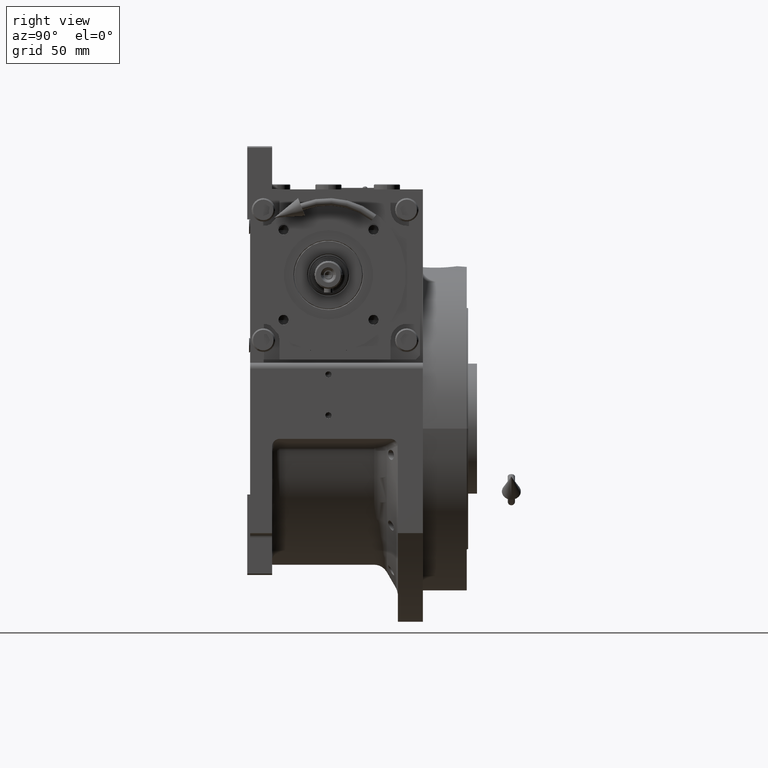
[diagram: clean part render]
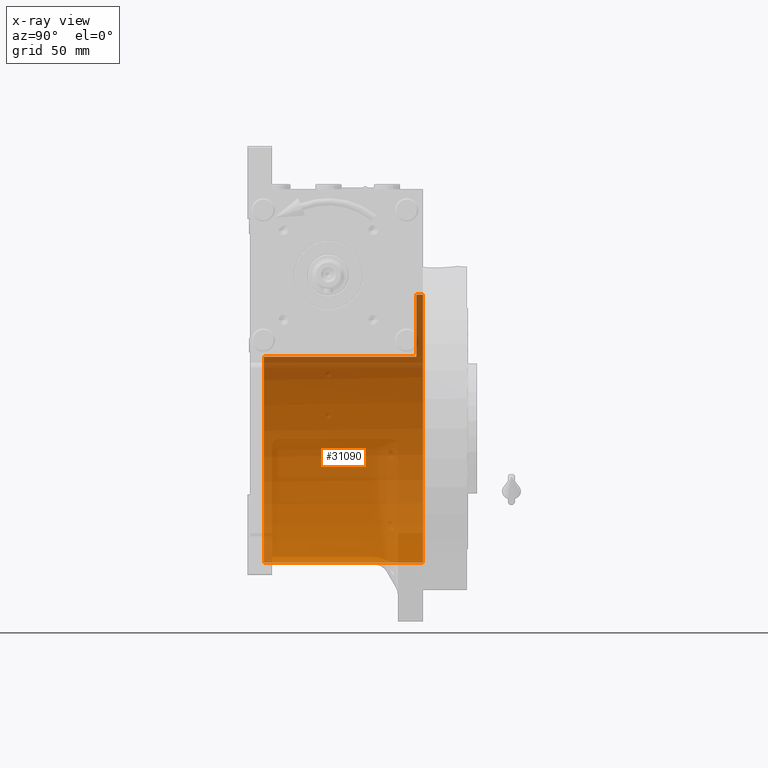
[diagram: x-ray — body ghosted, one internal face saturated and labeled with its STEP entity id]
A machine part, right view, then the same camera in x-ray: the body is ghosted and one INTERNAL B-rep face — a face not visible from any outside direction — is saturated and labeled: STEP entity #31090.
In plain terms, the highlighted cylindrical surface (partial cylindrical patch) has radius 91.5 mm, axis along (0, -1, 0).
Its self-contained STEP definition (entity closure, byte-faithful):
#1455 = DIRECTION ( 'NONE',  ( 0.000000000000000000, -1.000000000000000000, 0.000000000000000000 ) ) ;
#2625 = CIRCLE ( 'NONE', #34037, 91.50000000000000000 ) ;
#2694 = VECTOR ( 'NONE', #7690, 1000.000000000000000 ) ;
#4248 = CARTESIAN_POINT ( 'NONE',  ( 0.000000000000000000, -44.00000000000000000, 0.000000000000000000 ) ) ;
#4761 = ORIENTED_EDGE ( 'NONE', *, *, #48164, .F. ) ;
#6672 = LINE ( 'NONE', #49555, #58993 ) ;
#7690 = DIRECTION ( 'NONE',  ( -0.000000000000000000, 1.000000000000000000, -0.000000000000000000 ) ) ;
#9637 = DIRECTION ( 'NONE',  ( 0.000000000000000000, -1.000000000000000000, 0.000000000000000000 ) ) ;
#10783 = VERTEX_POINT ( 'NONE', #46263 ) ;
#11871 = VERTEX_POINT ( 'NONE', #40043 ) ;
#13109 = EDGE_CURVE ( 'NONE', #10783, #31284, #14566, .T. ) ;
#14145 = AXIS2_PLACEMENT_3D ( 'NONE', #4248, #59082, #53792 ) ;
#14566 = LINE ( 'NONE', #62741, #61930 ) ;
#14881 = DIRECTION ( 'NONE',  ( -0.000000000000000000, -1.000000000000000000, -0.000000000000000000 ) ) ;
#16648 = EDGE_CURVE ( 'NONE', #47183, #65299, #6672, .T. ) ;
#19133 = EDGE_CURVE ( 'NONE', #10783, #47183, #57244, .T. ) ;
#22296 = CARTESIAN_POINT ( 'NONE',  ( 0.000000000000000000, -44.00000000000000000, -91.50000000000000000 ) ) ;
#22478 = DIRECTION ( 'NONE',  ( 0.000000000000000000, -1.000000000000000000, 0.000000000000000000 ) ) ;
#23303 = ORIENTED_EDGE ( 'NONE', *, *, #61287, .F. ) ;
#28158 = FACE_OUTER_BOUND ( 'NONE', #44848, .T. ) ;
#28687 = CARTESIAN_POINT ( 'NONE',  ( 0.000000000000000000, 64.50000000000000000, -91.50000000000000000 ) ) ;
#30563 = CARTESIAN_POINT ( 'NONE',  ( 1.120551821219827868E-14, 60.00000000000000000, 91.50000000000000000 ) ) ;
#31090 = ADVANCED_FACE ( 'NONE', ( #28158 ), #48893, .F. ) ;
#31284 = VERTEX_POINT ( 'NONE', #30563 ) ;
#31555 = ORIENTED_EDGE ( 'NONE', *, *, #50344, .F. ) ;
#31752 = ORIENTED_EDGE ( 'NONE', *, *, #13109, .T. ) ;
#34037 = AXIS2_PLACEMENT_3D ( 'NONE', #35862, #52362, #51303 ) ;
#34401 = LINE ( 'NONE', #55855, #2694 ) ;
#35862 = CARTESIAN_POINT ( 'NONE',  ( 0.000000000000000000, 60.00000000000000000, 0.000000000000000000 ) ) ;
#36347 = DIRECTION ( 'NONE',  ( 0.000000000000000000, 0.000000000000000000, 1.000000000000000000 ) ) ;
#39268 = AXIS2_PLACEMENT_3D ( 'NONE', #60492, #1455, #44331 ) ;
#40043 = CARTESIAN_POINT ( 'NONE',  ( -77.27386362800814368, -44.00000000000000000, 49.00000000000000000 ) ) ;
#41131 = CIRCLE ( 'NONE', #14145, 91.50000000000000000 ) ;
#44331 = DIRECTION ( 'NONE',  ( 0.000000000000000000, 0.000000000000000000, -1.000000000000000000 ) ) ;
#44848 = EDGE_LOOP ( 'NONE', ( #63069, #31752, #23303, #4761, #31555, #59738 ) ) ;
#46263 = CARTESIAN_POINT ( 'NONE',  ( 1.120551821219827868E-14, 64.50000000000000000, 91.50000000000000000 ) ) ;
#47183 = VERTEX_POINT ( 'NONE', #28687 ) ;
#48164 = EDGE_CURVE ( 'NONE', #11871, #65623, #34401, .T. ) ;
#48893 = CYLINDRICAL_SURFACE ( 'NONE', #39268, 91.50000000000000000 ) ;
#49555 = CARTESIAN_POINT ( 'NONE',  ( 0.000000000000000000, 69.00000000000004263, -91.50000000000000000 ) ) ;
#50344 = EDGE_CURVE ( 'NONE', #65299, #11871, #41131, .T. ) ;
#51303 = DIRECTION ( 'NONE',  ( 1.776356839400250465E-15, 0.000000000000000000, -1.000000000000000000 ) ) ;
#51604 = AXIS2_PLACEMENT_3D ( 'NONE', #52855, #14881, #36347 ) ;
#52362 = DIRECTION ( 'NONE',  ( 0.000000000000000000, 1.000000000000000000, 0.000000000000000000 ) ) ;
#52855 = CARTESIAN_POINT ( 'NONE',  ( 0.000000000000000000, 64.50000000000000000, 0.000000000000000000 ) ) ;
#53792 = DIRECTION ( 'NONE',  ( 0.000000000000000000, 0.000000000000000000, 1.000000000000000000 ) ) ;
#55855 = CARTESIAN_POINT ( 'NONE',  ( -77.27386362800812947, 69.00000000000004263, 48.99999999999998579 ) ) ;
#57244 = CIRCLE ( 'NONE', #51604, 91.50000000000000000 ) ;
#58993 = VECTOR ( 'NONE', #22478, 1000.000000000000000 ) ;
#59082 = DIRECTION ( 'NONE',  ( 0.000000000000000000, 1.000000000000000000, 0.000000000000000000 ) ) ;
#59738 = ORIENTED_EDGE ( 'NONE', *, *, #16648, .F. ) ;
#59853 = CARTESIAN_POINT ( 'NONE',  ( -77.27386362800814368, 60.00000000000000000, 48.99999999999998579 ) ) ;
#60492 = CARTESIAN_POINT ( 'NONE',  ( 0.000000000000000000, 69.00000000000004263, 0.000000000000000000 ) ) ;
#61287 = EDGE_CURVE ( 'NONE', #65623, #31284, #2625, .T. ) ;
#61930 = VECTOR ( 'NONE', #9637, 1000.000000000000000 ) ;
#62741 = CARTESIAN_POINT ( 'NONE',  ( 1.120551821219827868E-14, 69.00000000000004263, 91.50000000000000000 ) ) ;
#63069 = ORIENTED_EDGE ( 'NONE', *, *, #19133, .F. ) ;
#65299 = VERTEX_POINT ( 'NONE', #22296 ) ;
#65623 = VERTEX_POINT ( 'NONE', #59853 ) ;